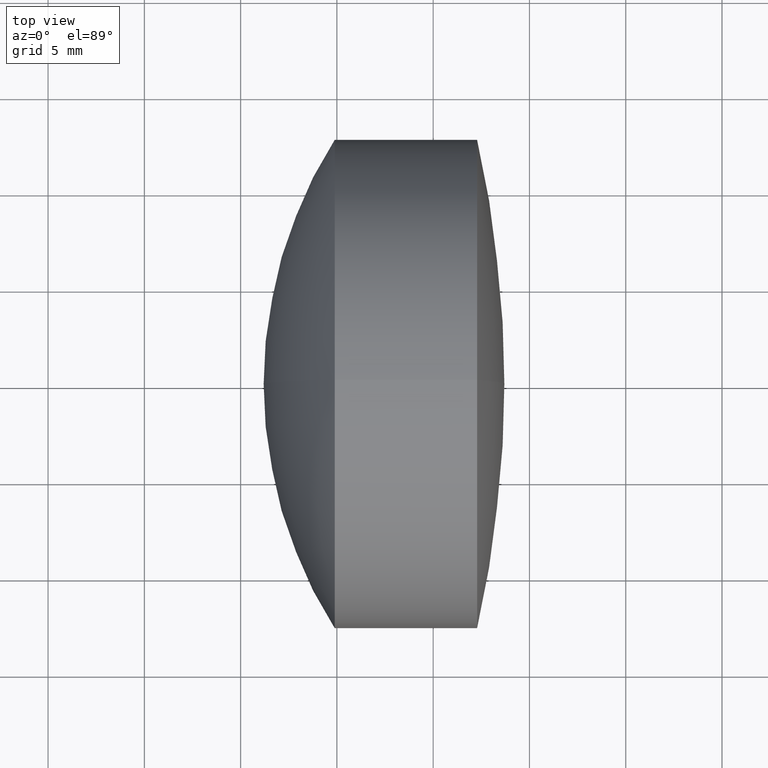
[diagram: clean part render]
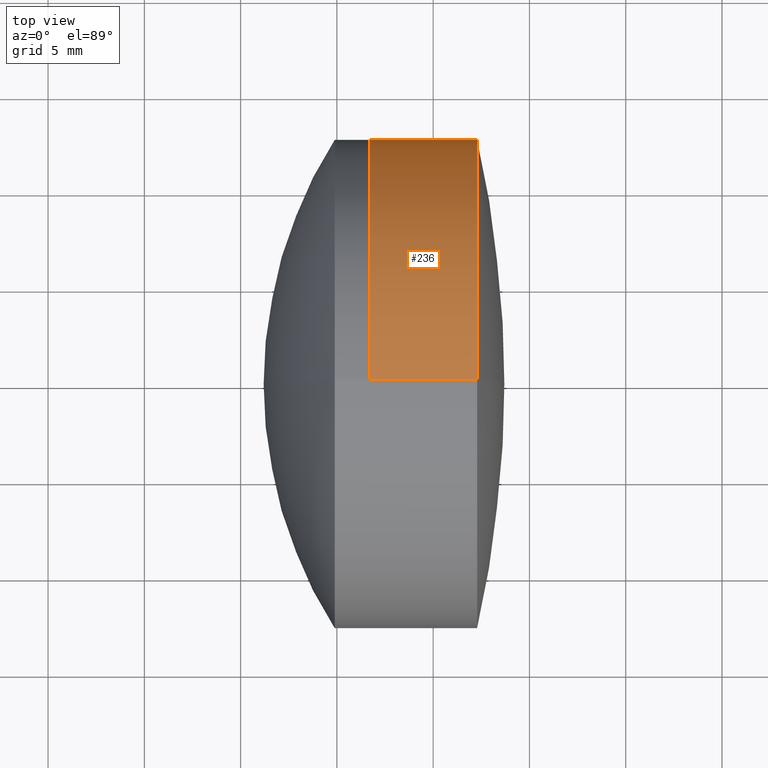
[diagram: same view with one face highlighted and labeled with its STEP entity id]
A machine part, top view. The second image highlights one B-rep face of the part: STEP entity #236.
In plain terms, the highlighted cylindrical surface (partial cylindrical patch) has radius 12.7 mm, axis along (-1, -0, -0).
Its self-contained STEP definition (entity closure, byte-faithful):
#2 = VERTEX_POINT ( 'NONE', #145 ) ;
#11 = AXIS2_PLACEMENT_3D ( 'NONE', #69, #126, #292 ) ;
#15 = VERTEX_POINT ( 'NONE', #150 ) ;
#23 = CARTESIAN_POINT ( 'NONE',  ( 232.2808349263005700, 0.0000000000000000000, 0.0000000000000000000 ) ) ;
#34 = VERTEX_POINT ( 'NONE', #165 ) ;
#47 = DIRECTION ( 'NONE',  ( -1.000000000000000000, -0.0000000000000000000, -0.0000000000000000000 ) ) ;
#48 = DIRECTION ( 'NONE',  ( -1.000000000000000000, -0.0000000000000000000, -0.0000000000000000000 ) ) ;
#69 = CARTESIAN_POINT ( 'NONE',  ( -0.5519199926577972300, 0.0000000000000000000, 0.0000000000000000000 ) ) ;
#70 = AXIS2_PLACEMENT_3D ( 'NONE', #23, #47, #124 ) ;
#84 = AXIS2_PLACEMENT_3D ( 'NONE', #240, #162, #266 ) ;
#85 = EDGE_CURVE ( 'NONE', #265, #2, #237, .T. ) ;
#94 = VECTOR ( 'NONE', #48, 1000.000000000000000 ) ;
#104 = ORIENTED_EDGE ( 'NONE', *, *, #314, .F. ) ;
#111 = CARTESIAN_POINT ( 'NONE',  ( -0.5519199926577972300, 0.0000000000000000000, 12.70000000000000300 ) ) ;
#124 = DIRECTION ( 'NONE',  ( 0.0000000000000000000, 0.0000000000000000000, 1.000000000000000000 ) ) ;
#126 = DIRECTION ( 'NONE',  ( -1.000000000000000000, -0.0000000000000000000, -0.0000000000000000000 ) ) ;
#143 = FACE_OUTER_BOUND ( 'NONE', #233, .T. ) ;
#145 = CARTESIAN_POINT ( 'NONE',  ( 226.6753194837398000, 1.555301434917138200E-015, -12.70000000000000300 ) ) ;
#150 = CARTESIAN_POINT ( 'NONE',  ( 226.6753194837398000, 0.0000000000000000000, 12.69999999999999900 ) ) ;
#162 = DIRECTION ( 'NONE',  ( -1.000000000000000000, -0.0000000000000000000, -0.0000000000000000000 ) ) ;
#164 = CARTESIAN_POINT ( 'NONE',  ( -0.5519199926577972300, 1.555301434917138800E-015, -12.70000000000000300 ) ) ;
#165 = CARTESIAN_POINT ( 'NONE',  ( 232.2808349263005700, 0.0000000000000000000, 12.70000000000000300 ) ) ;
#166 = ORIENTED_EDGE ( 'NONE', *, *, #249, .T. ) ;
#195 = ORIENTED_EDGE ( 'NONE', *, *, #321, .F. ) ;
#206 = CARTESIAN_POINT ( 'NONE',  ( 232.2808349263005700, 1.555301434917138800E-015, -12.70000000000000300 ) ) ;
#215 = VECTOR ( 'NONE', #228, 1000.000000000000000 ) ;
#228 = DIRECTION ( 'NONE',  ( -1.000000000000000000, -0.0000000000000000000, -0.0000000000000000000 ) ) ;
#233 = EDGE_LOOP ( 'NONE', ( #166, #287, #195, #104 ) ) ;
#234 = LINE ( 'NONE', #111, #215 ) ;
#236 = ADVANCED_FACE ( 'NONE', ( #143 ), #285, .T. ) ;
#237 = LINE ( 'NONE', #164, #94 ) ;
#240 = CARTESIAN_POINT ( 'NONE',  ( 226.6753194837398000, 0.0000000000000000000, 0.0000000000000000000 ) ) ;
#249 = EDGE_CURVE ( 'NONE', #34, #265, #324, .T. ) ;
#252 = CIRCLE ( 'NONE', #84, 12.70000000000000100 ) ;
#265 = VERTEX_POINT ( 'NONE', #206 ) ;
#266 = DIRECTION ( 'NONE',  ( 0.0000000000000000000, 0.0000000000000000000, 1.000000000000000000 ) ) ;
#285 = CYLINDRICAL_SURFACE ( 'NONE', #11, 12.70000000000000300 ) ;
#287 = ORIENTED_EDGE ( 'NONE', *, *, #85, .T. ) ;
#292 = DIRECTION ( 'NONE',  ( 0.0000000000000000000, 0.0000000000000000000, 1.000000000000000000 ) ) ;
#314 = EDGE_CURVE ( 'NONE', #34, #15, #234, .T. ) ;
#321 = EDGE_CURVE ( 'NONE', #15, #2, #252, .T. ) ;
#324 = CIRCLE ( 'NONE', #70, 12.70000000000000300 ) ;